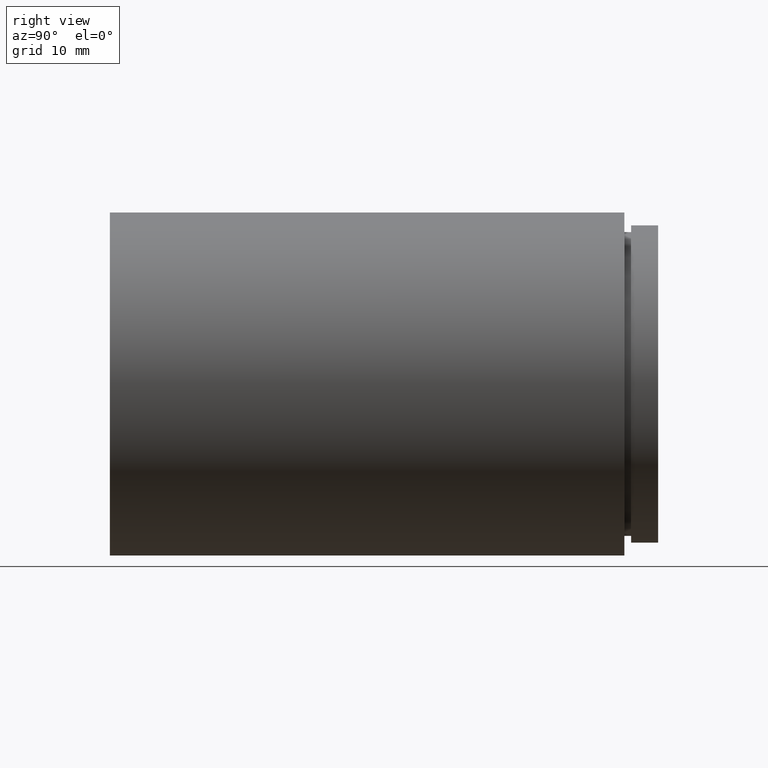
[diagram: clean part render]
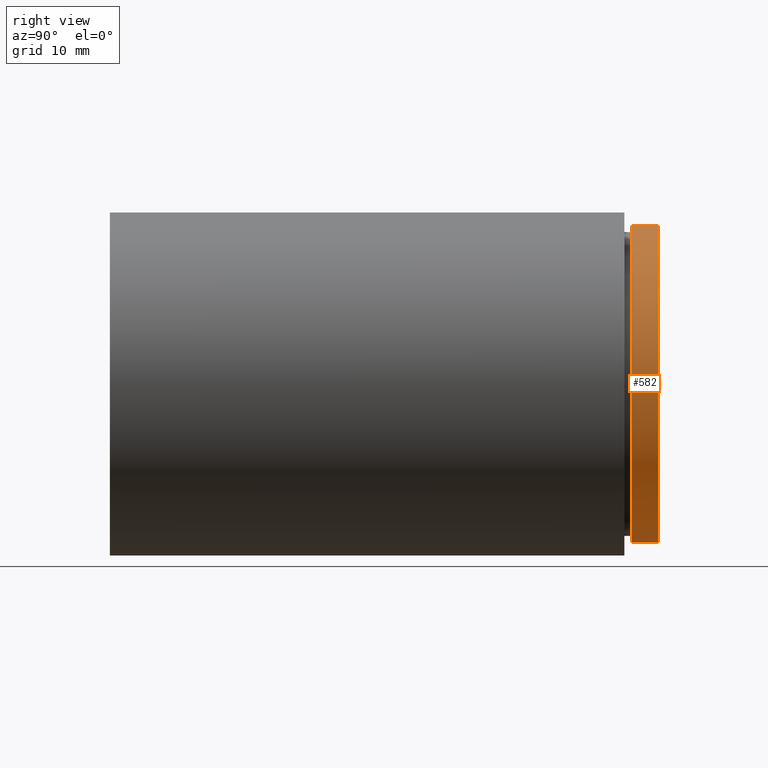
[diagram: same view with one face highlighted and labeled with its STEP entity id]
A machine part, right view. The second image highlights one B-rep face of the part: STEP entity #582.
In plain terms, the highlighted cylindrical surface (partial cylindrical patch) has radius 23.5 mm, axis along (-0, 1, -0).
Its self-contained STEP definition (entity closure, byte-faithful):
#49 = EDGE_LOOP ( 'NONE', ( #111, #235, #681, #701 ) ) ;
#75 = CARTESIAN_POINT ( 'NONE',  ( 2.877919977996264100E-015, 161.3761669434274500, -23.49999999999986900 ) ) ;
#81 = VERTEX_POINT ( 'NONE', #199 ) ;
#91 = DIRECTION ( 'NONE',  ( 0.0000000000000000000, 0.0000000000000000000, 1.000000000000000000 ) ) ;
#99 = CARTESIAN_POINT ( 'NONE',  ( 0.0000000000000000000, 77.20000000000000300, 0.0000000000000000000 ) ) ;
#111 = ORIENTED_EDGE ( 'NONE', *, *, #296, .T. ) ;
#114 = EDGE_CURVE ( 'NONE', #546, #81, #667, .T. ) ;
#158 = CARTESIAN_POINT ( 'NONE',  ( 0.0000000000000000000, 161.3761669434274500, 23.49999999999986900 ) ) ;
#167 = EDGE_CURVE ( 'NONE', #801, #404, #498, .T. ) ;
#199 = CARTESIAN_POINT ( 'NONE',  ( 0.0000000000000000000, 81.19999999999998900, 23.49999999999986500 ) ) ;
#221 = CIRCLE ( 'NONE', #631, 23.49999999999986500 ) ;
#229 = CARTESIAN_POINT ( 'NONE',  ( 2.877919977996263800E-015, 81.19999999999998900, -23.49999999999986500 ) ) ;
#235 = ORIENTED_EDGE ( 'NONE', *, *, #167, .T. ) ;
#251 = VECTOR ( 'NONE', #333, 1000.000000000000000 ) ;
#252 = DIRECTION ( 'NONE',  ( -0.0000000000000000000, 1.000000000000000000, -0.0000000000000000000 ) ) ;
#263 = DIRECTION ( 'NONE',  ( -0.0000000000000000000, 1.000000000000000000, -0.0000000000000000000 ) ) ;
#290 = DIRECTION ( 'NONE',  ( -0.0000000000000000000, 1.000000000000000000, -0.0000000000000000000 ) ) ;
#293 = AXIS2_PLACEMENT_3D ( 'NONE', #503, #566, #321 ) ;
#296 = EDGE_CURVE ( 'NONE', #546, #801, #429, .T. ) ;
#303 = FACE_OUTER_BOUND ( 'NONE', #49, .T. ) ;
#321 = DIRECTION ( 'NONE',  ( 0.0000000000000000000, 0.0000000000000000000, 1.000000000000000000 ) ) ;
#333 = DIRECTION ( 'NONE',  ( -0.0000000000000000000, 1.000000000000000000, -0.0000000000000000000 ) ) ;
#404 = VERTEX_POINT ( 'NONE', #229 ) ;
#429 = CIRCLE ( 'NONE', #607, 23.49999999999987200 ) ;
#498 = LINE ( 'NONE', #75, #251 ) ;
#503 = CARTESIAN_POINT ( 'NONE',  ( 0.0000000000000000000, 161.3761669434274500, 0.0000000000000000000 ) ) ;
#546 = VERTEX_POINT ( 'NONE', #743 ) ;
#552 = CARTESIAN_POINT ( 'NONE',  ( 0.0000000000000000000, 81.19999999999998900, 0.0000000000000000000 ) ) ;
#566 = DIRECTION ( 'NONE',  ( -0.0000000000000000000, 1.000000000000000000, -0.0000000000000000000 ) ) ;
#577 = CYLINDRICAL_SURFACE ( 'NONE', #293, 23.49999999999986900 ) ;
#582 = ADVANCED_FACE ( 'NONE', ( #303 ), #577, .T. ) ;
#599 = EDGE_CURVE ( 'NONE', #81, #404, #221, .T. ) ;
#607 = AXIS2_PLACEMENT_3D ( 'NONE', #99, #290, #91 ) ;
#631 = AXIS2_PLACEMENT_3D ( 'NONE', #552, #252, #750 ) ;
#635 = CARTESIAN_POINT ( 'NONE',  ( 2.877919977996264900E-015, 77.20000000000000300, -23.49999999999987600 ) ) ;
#667 = LINE ( 'NONE', #158, #727 ) ;
#681 = ORIENTED_EDGE ( 'NONE', *, *, #599, .F. ) ;
#701 = ORIENTED_EDGE ( 'NONE', *, *, #114, .F. ) ;
#727 = VECTOR ( 'NONE', #263, 1000.000000000000000 ) ;
#743 = CARTESIAN_POINT ( 'NONE',  ( 0.0000000000000000000, 77.20000000000000300, 23.49999999999987200 ) ) ;
#750 = DIRECTION ( 'NONE',  ( 0.0000000000000000000, 0.0000000000000000000, 1.000000000000000000 ) ) ;
#801 = VERTEX_POINT ( 'NONE', #635 ) ;